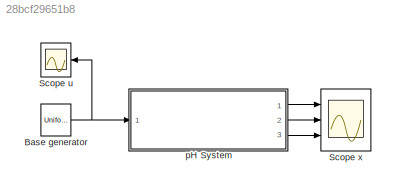
MODEL slx_28bcf29651b8
KIND model
CONFIG AbsTol = auto
CONFIG EnableMultiTasking = off
CONFIG FixedStep = auto
CONFIG MaxStep = auto
CONFIG MinStep = auto
CONFIG RelTol = 1e-3
CONFIG SampleTimeConstraint = Unconstrained
CONFIG Solver = ode45
CONFIG SolverName = ode45
CONFIG StartTime = 0.0
CONFIG StopTime = 30000
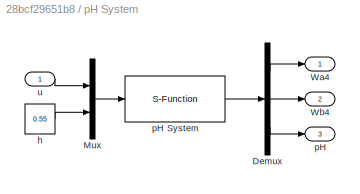
BLOCK [SubSystem]  pH System 
  Ports = [1, 3]
  RequestExecContextInheritance = off
BLOCK [Constant]  pH System / h 
  Value = 0.55
BLOCK [Demux]  pH System /Demux
  DisplayOption = bar
  Outputs = 3
  Ports = [1, 3]
BLOCK [Mux]  pH System /Mux
  DisplayOption = bar
  Inputs = 2
  Ports = [2, 1]
BLOCK [Outport]  pH System /Wa4
  IconDisplay = Port number
BLOCK [Outport]  pH System /Wb4
  IconDisplay = Port number
  Port = 2
BLOCK [Outport]  pH System /pH
  IconDisplay = Port number
  Port = 3
BLOCK [S-Function]  pH System /pH System
  EnableBusSupport = off
  FunctionName = pH_sfun
  Ports = [1, 1]
  SFcnIsStateOwnerBlock = off
  SFunctionDeploymentMode = off
BLOCK [Inport]  pH System /u
  IconDisplay = Port number
BLOCK [UniformRandomNumber] Base generator
  Maximum = 50
  Minimum = 0
  SampleTime = 50
  Seed = 7
BLOCK [Scope] Scope u
  Floating = off
  NumInputPorts = 1
  Ports = [1]
  ScopeSpecificationString = Simulink.scopes.TimeScopeBlockCfg('CurrentConfiguration', extmgr.ConfigurationSet(extmgr.Configuration('Core','General UI',true),extmgr.Configuration('Core','Source UI',true),extmgr.Configuration('Sources','WiredSimulink',true,'DataLoggingVariableName','u','DataLogging',true,'DataLoggingSaveFormat','StructureWithTime','SampleTime','5'),extmgr.Configuration('Visuals','Time Domain',true,'SerializedD...<+1540ch>
BLOCK [Scope] Scope x
  Floating = off
  NumInputPorts = 3
  Ports = [3]
  ScopeSpecificationString = Simulink.scopes.TimeScopeBlockCfg('CurrentConfiguration', extmgr.ConfigurationSet(extmgr.Configuration('Core','General UI',true),extmgr.Configuration('Core','Source UI',true),extmgr.Configuration('Sources','WiredSimulink',true,'DataLoggingVariableName','x','DataLogging',true,'DataLoggingSaveFormat','StructureWithTime','SampleTime','5'),extmgr.Configuration('Visuals','Time Domain',true,'SerializedD...<+2821ch>
LINE  pH System / h :1 ->  pH System /Mux:2
LINE  pH System /Demux:1 ->  pH System /Wa4:1
LINE  pH System /Demux:2 ->  pH System /Wb4:1
LINE  pH System /Demux:3 ->  pH System /pH:1
LINE  pH System /Mux:1 ->  pH System /pH System:1
LINE  pH System /pH System:1 ->  pH System /Demux:1
LINE  pH System /u:1 ->  pH System /Mux:1
LINE  pH System :1 -> Scope x:1
LINE  pH System :2 -> Scope x:2
LINE  pH System :3 -> Scope x:3
NET Base generator:1 ->  pH System :1, Scope u:1
note: NET lines group one-source signal fan-out (src -> all destinations, sorted); 1:1 wires keep LINE
